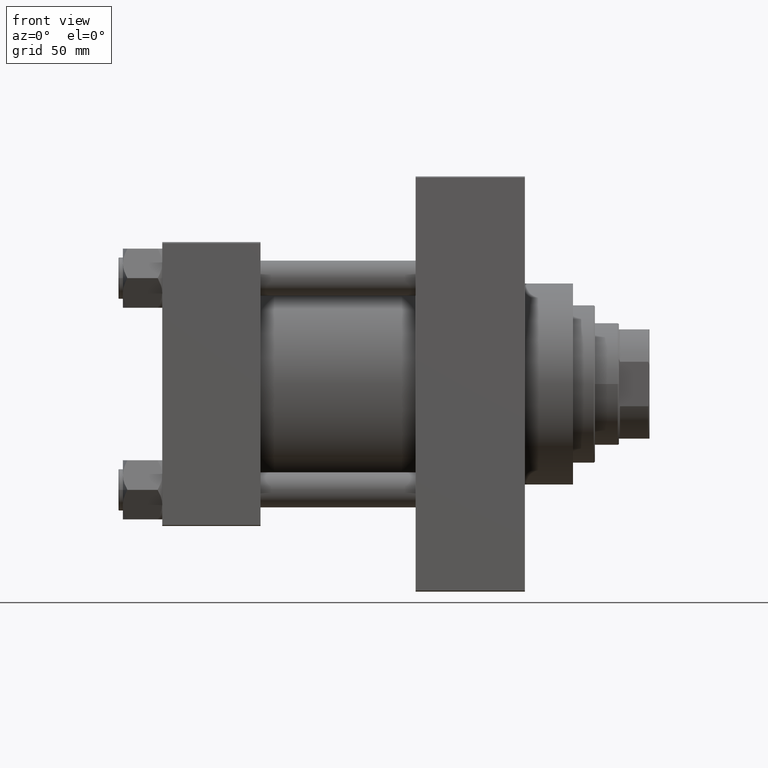
[diagram: clean part render]
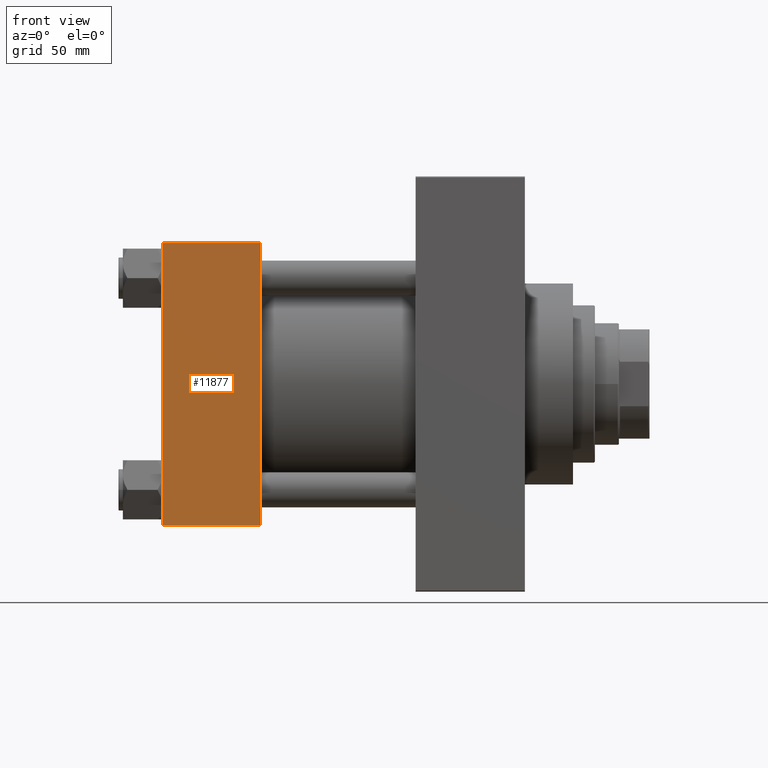
[diagram: same view with one face highlighted and labeled with its STEP entity id]
A machine part, front view. The second image highlights one B-rep face of the part: STEP entity #11877.
In plain terms, the highlighted planar face has unit normal (0, 1, 0).
Its self-contained STEP definition (entity closure, byte-faithful):
#1018 = CARTESIAN_POINT ( 'NONE',  ( 45.00000000000000000, -65.00000000000000000, -64.49999999999991473 ) ) ;
#3140 = CARTESIAN_POINT ( 'NONE',  ( 45.00000000000000000, -65.00000000000000000, 64.50000000000000000 ) ) ;
#3591 = EDGE_LOOP ( 'NONE', ( #3966, #3634, #13926, #8643 ) ) ;
#3634 = ORIENTED_EDGE ( 'NONE', *, *, #13730, .T. ) ;
#3684 = DIRECTION ( 'NONE',  ( 1.000000000000000000, 0.000000000000000000, 0.000000000000000000 ) ) ;
#3966 = ORIENTED_EDGE ( 'NONE', *, *, #41400, .T. ) ;
#3992 = DIRECTION ( 'NONE',  ( 0.000000000000000000, 0.000000000000000000, -1.000000000000000000 ) ) ;
#4220 = LINE ( 'NONE', #18924, #42016 ) ;
#4266 = DIRECTION ( 'NONE',  ( -1.000000000000000000, 0.000000000000000000, 0.000000000000000000 ) ) ;
#5080 = LINE ( 'NONE', #41083, #27147 ) ;
#5869 = DIRECTION ( 'NONE',  ( -0.000000000000000000, 1.000000000000000000, 0.000000000000000000 ) ) ;
#8643 = ORIENTED_EDGE ( 'NONE', *, *, #31938, .T. ) ;
#11861 = CARTESIAN_POINT ( 'NONE',  ( 0.000000000000000000, -65.00000000000000000, -64.49999999999991473 ) ) ;
#11877 = ADVANCED_FACE ( 'NONE', ( #32185 ), #38957, .F. ) ;
#13730 = EDGE_CURVE ( 'NONE', #14624, #15566, #41098, .T. ) ;
#13798 = VECTOR ( 'NONE', #3684, 1000.000000000000000 ) ;
#13926 = ORIENTED_EDGE ( 'NONE', *, *, #34497, .F. ) ;
#14624 = VERTEX_POINT ( 'NONE', #11861 ) ;
#15271 = CARTESIAN_POINT ( 'NONE',  ( 0.000000000000000000, -65.00000000000000000, 64.50000000000000000 ) ) ;
#15566 = VERTEX_POINT ( 'NONE', #21018 ) ;
#18019 = CARTESIAN_POINT ( 'NONE',  ( 45.00000000000000000, -65.00000000000000000, 64.50000000000000000 ) ) ;
#18924 = CARTESIAN_POINT ( 'NONE',  ( 0.000000000000000000, -65.00000000000000000, 65.00000000000000000 ) ) ;
#21018 = CARTESIAN_POINT ( 'NONE',  ( 45.00000000000000000, -65.00000000000000000, -64.49999999999991473 ) ) ;
#27147 = VECTOR ( 'NONE', #40850, 1000.000000000000000 ) ;
#31938 = EDGE_CURVE ( 'NONE', #35762, #34294, #44365, .T. ) ;
#32185 = FACE_OUTER_BOUND ( 'NONE', #3591, .T. ) ;
#34294 = VERTEX_POINT ( 'NONE', #15271 ) ;
#34497 = EDGE_CURVE ( 'NONE', #35762, #15566, #5080, .T. ) ;
#35762 = VERTEX_POINT ( 'NONE', #3140 ) ;
#38957 = PLANE ( 'NONE',  #46262 ) ;
#40850 = DIRECTION ( 'NONE',  ( 0.000000000000000000, 0.000000000000000000, -1.000000000000000000 ) ) ;
#41083 = CARTESIAN_POINT ( 'NONE',  ( 45.00000000000000000, -65.00000000000000000, 65.00000000000000000 ) ) ;
#41098 = LINE ( 'NONE', #1018, #13798 ) ;
#41400 = EDGE_CURVE ( 'NONE', #34294, #14624, #4220, .T. ) ;
#42016 = VECTOR ( 'NONE', #3992, 1000.000000000000000 ) ;
#44080 = VECTOR ( 'NONE', #4266, 1000.000000000000000 ) ;
#44365 = LINE ( 'NONE', #18019, #44080 ) ;
#45970 = CARTESIAN_POINT ( 'NONE',  ( 45.00000000000000000, -65.00000000000000000, 65.00000000000000000 ) ) ;
#46262 = AXIS2_PLACEMENT_3D ( 'NONE', #45970, #5869, #46932 ) ;
#46932 = DIRECTION ( 'NONE',  ( 0.000000000000000000, -0.000000000000000000, 1.000000000000000000 ) ) ;